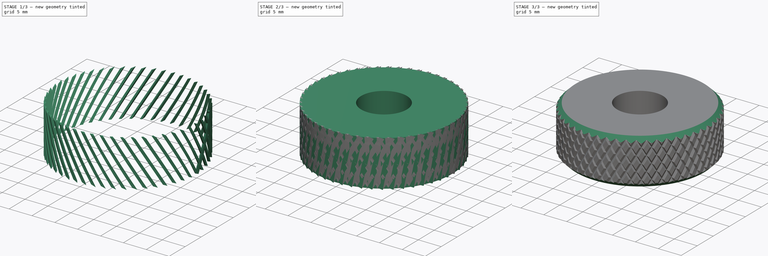
[diagram: build sequence overview — one tinted view per stage of 3, left to right]
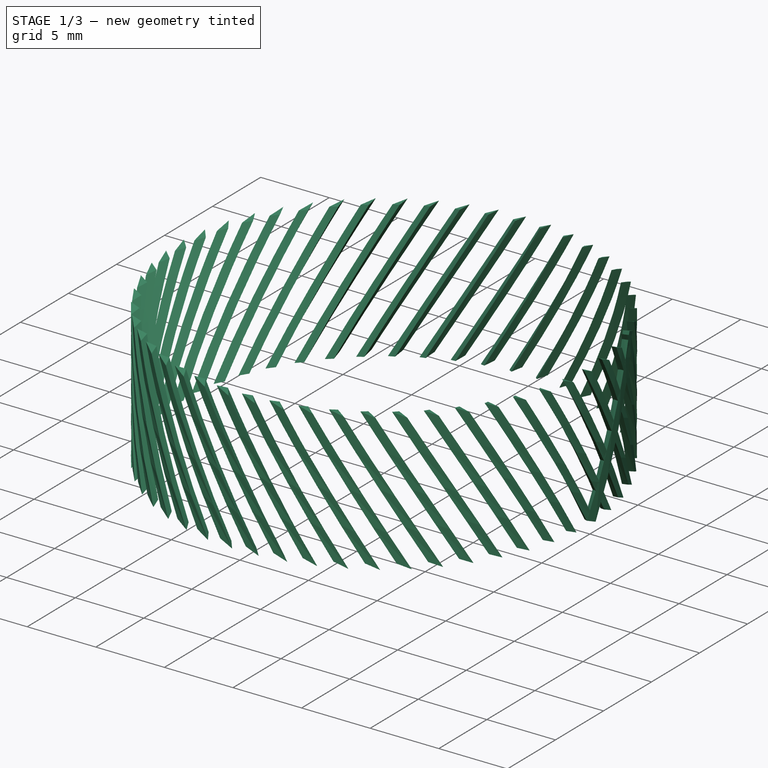
[diagram: stage 1 of 3 — iso view after this stage's code; geometry added in this stage tinted green]
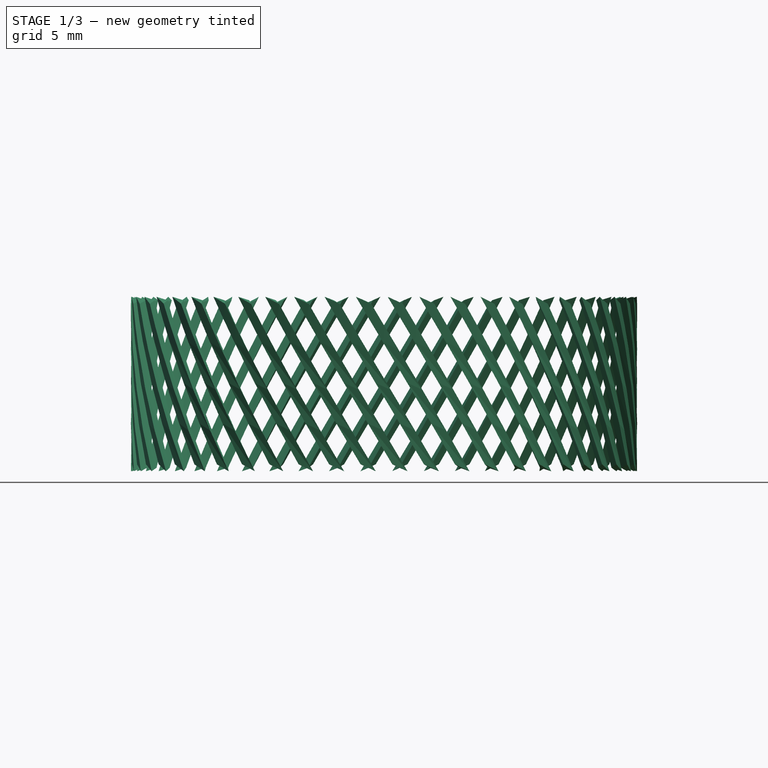
[diagram: stage 1 of 3 — front view after this stage's code; geometry added in this stage tinted green]
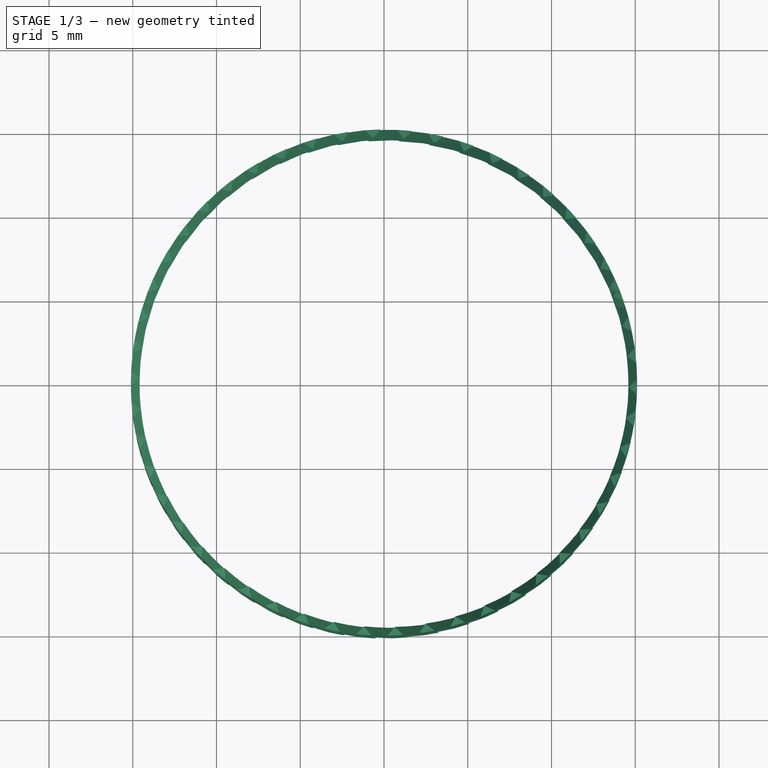
[diagram: stage 1 of 3 — top view after this stage's code; geometry added in this stage tinted green]
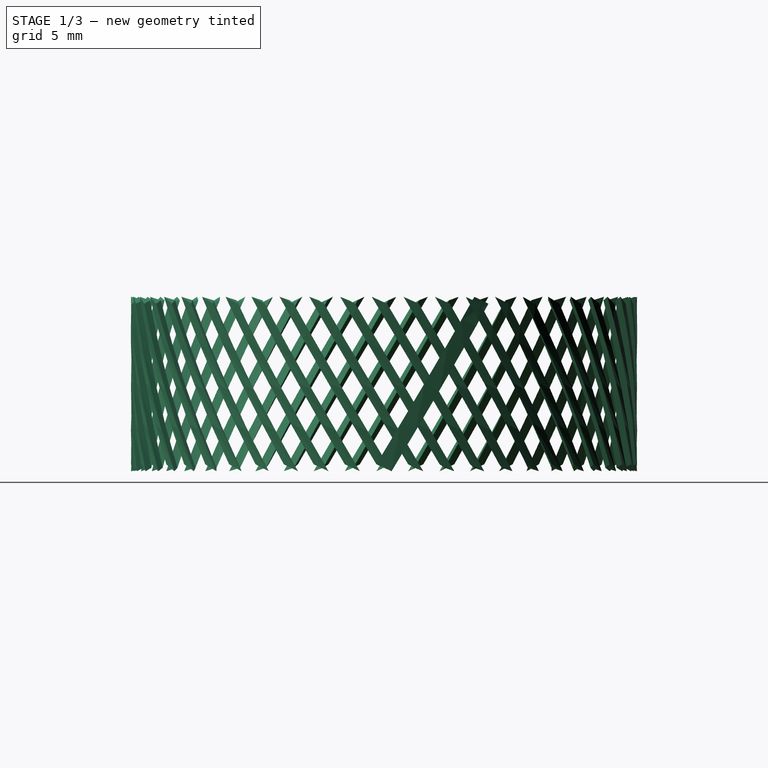
[diagram: stage 1 of 3 — right view after this stage's code; geometry added in this stage tinted green]
FCSTD DOCUMENT  (FreeCAD 0.16R6700 (Git))
Label: knurling
License: FreeArt
LicenseURL: http://artlibre.org/licence/lal
objects: Sketcher::SketchObject×2, Part::Helix×2, Part::Part2DObjectPython×2, Part::Sweep×2, Part::FeaturePython×2, Part::Cut×2, PartDesign::Pad×1, PartDesign::Chamfer×1
note: 15 computed .brp shape members not serialized (recipe doc carries the construction recipe); baked Part::Feature solids carry a one-line shape summary decoded from their .brp

FEATURE [Part::Helix] Helix
  Angle = 0
  Height = 10
  LocalCoord = 0
  Pitch = 159
  Radius = 15
  Style = 1
FEATURE [Part::Helix] Helix001
  Angle = 0
  Height = 10
  LocalCoord = 1
  Pitch = 159
  Radius = 15
  Style = 1
FEATURE [Sketcher::SketchObject] Sketch001
  Placement = pos=(0,0,0) rot=(1,0,0;3.14159rad)
  Support = -> Chamfer [Face4]
  sketch-geometry (4):
    g0: LineSegment StartX=14.604 StartY=0 StartZ=0 EndX=15.104 EndY=0.5 EndZ=0
    g1: LineSegment StartX=15.104 StartY=0.5 StartZ=0 EndX=15.104 EndY=-0.5 EndZ=0
    g2: LineSegment StartX=15.104 StartY=-0.5 StartZ=0 EndX=14.604 EndY=0 EndZ=0
    g3: GeomPoint [constr] X=15 Y=0 Z=0
  constraints (11):
    c: PointOnObject(g0,g-1)
    c: Coincident(g0,g1)
    c: Vertical(g1)
    c: Coincident(g1,g2)
    c: Coincident(g2,g0)
    c: Symmetric(g1,g0,g-1)
    c: Angle(g2,g0) = 1.5708
    c: PointOnObject(g3,g-1)
    c: DistanceX(g-2,g3) = 15
    c: Distance(g0,g3) = 0.396
    c: DistanceX(g2,g2) = 0.5
FEATURE [Part::Part2DObjectPython] DWire  # Draft 2D object (typed FeaturePython)
  ChamferSize = 0
  Closed = true
  End = (15.104,0.426498,0.260959)
  FilletRadius = 0
  Length = 2.41421
  MakeFace = true
  Placement = pos=(0,0,0) rot=(1,0,0;0.549097rad)
  Points = (3) [(14.604,0,0),(15.104,-0.5,0),(15.104,0.5,0)]
  Start = (14.604,0,0)
  Subdivisions = 0
FEATURE [Part::Part2DObjectPython] DWire001  # Draft 2D object (typed FeaturePython)
  ChamferSize = 0
  Closed = true
  End = (15.104,0.455147,-0.20698)
  FilletRadius = 0
  Length = 2.41421
  MakeFace = true
  Placement = pos=(0,0,0) rot=(-1,0,0;0.426801rad)
  Points = (3) [(14.604,0,0),(15.104,-0.5,0),(15.104,0.5,0)]
  Start = (14.604,0,0)
  Subdivisions = 0
FEATURE [Part::Sweep] Sweep
  Frenet = true
  Sections = -> [DWire001]
  Solid = true
  Spine = -> Helix
  Transition = 1
FEATURE [Part::Sweep] Sweep001
  Frenet = true
  Sections = -> [DWire001]
  Solid = true
  Spine = -> Helix001 [Edge1]
  Transition = 1
FEATURE [Part::FeaturePython] Array001  # Draft array (typed FeaturePython)
  Angle = 360
  ArrayType = 1
  Axis = (0,0,1)
  Base = -> Sweep001
  Center = (0,0,0)
  Fuse = false
  IntervalAxis = (0,0,0)
  IntervalX = (1,0,0)
  IntervalY = (0,1,0)
  IntervalZ = (0,0,0)
  NumberPolar = 50
  NumberX = 1
  NumberY = 2
  NumberZ = 1
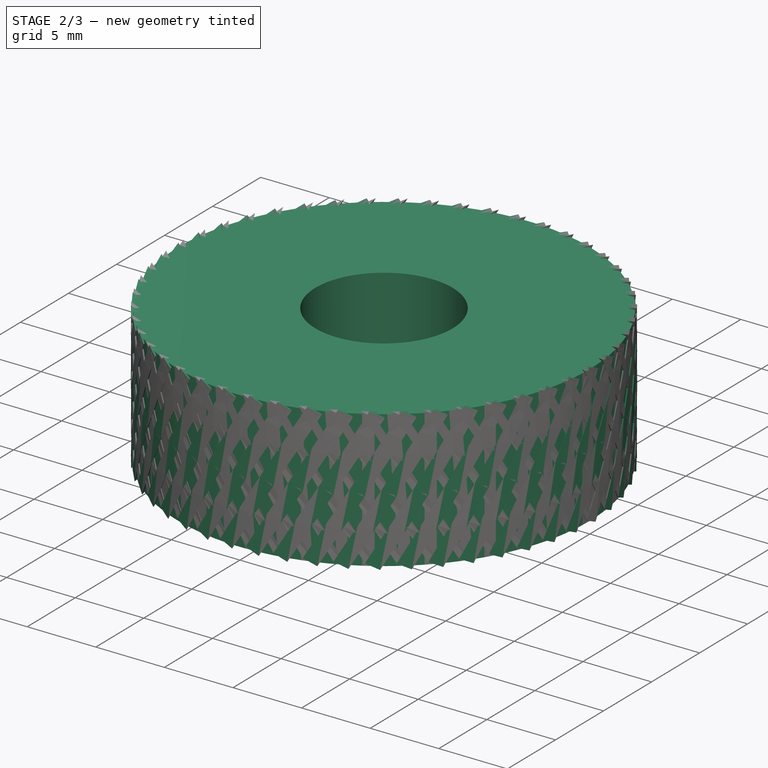
[diagram: stage 2 of 3 — iso view after this stage's code; geometry added in this stage tinted green]
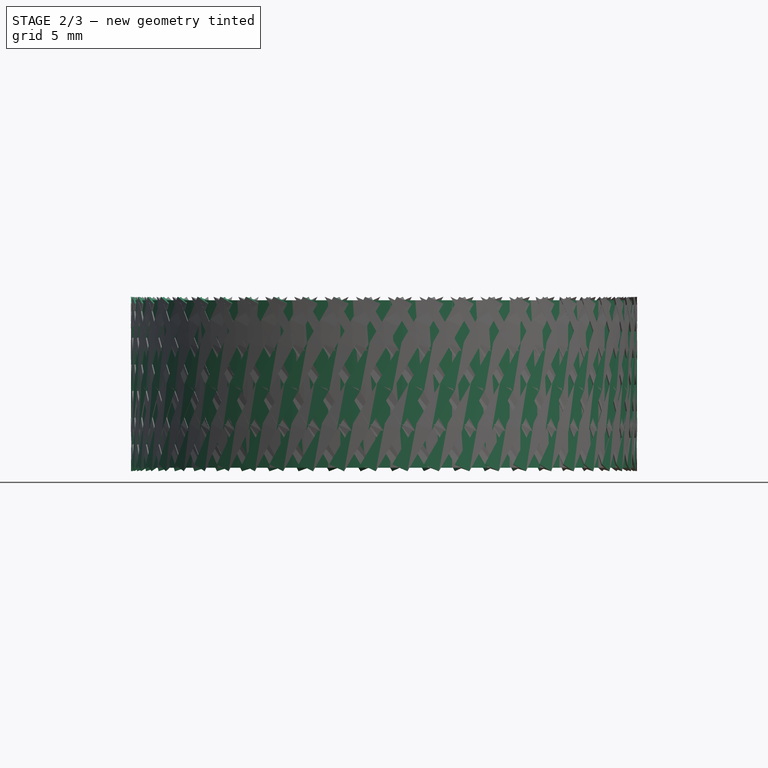
[diagram: stage 2 of 3 — front view after this stage's code; geometry added in this stage tinted green]
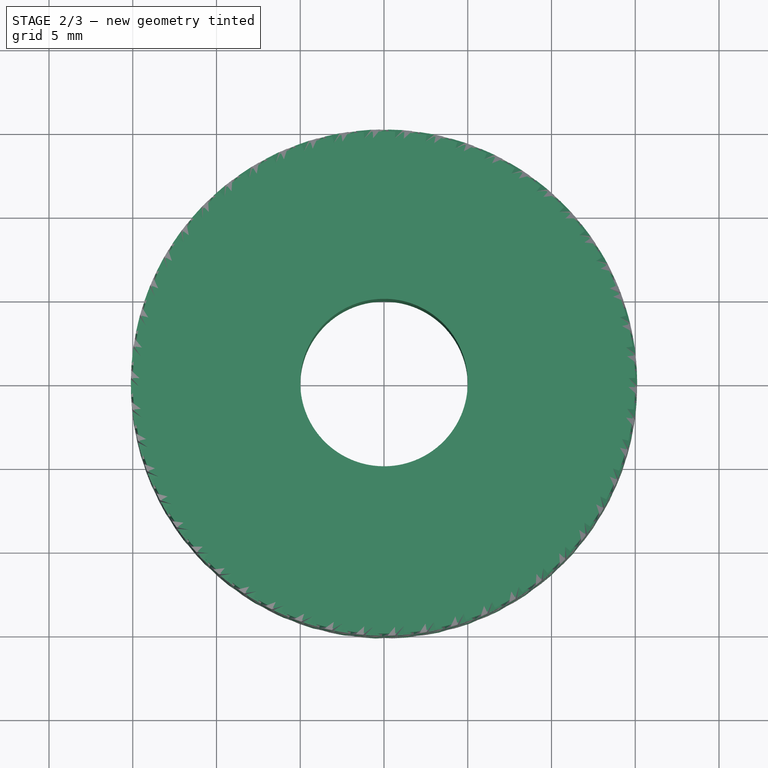
[diagram: stage 2 of 3 — top view after this stage's code; geometry added in this stage tinted green]
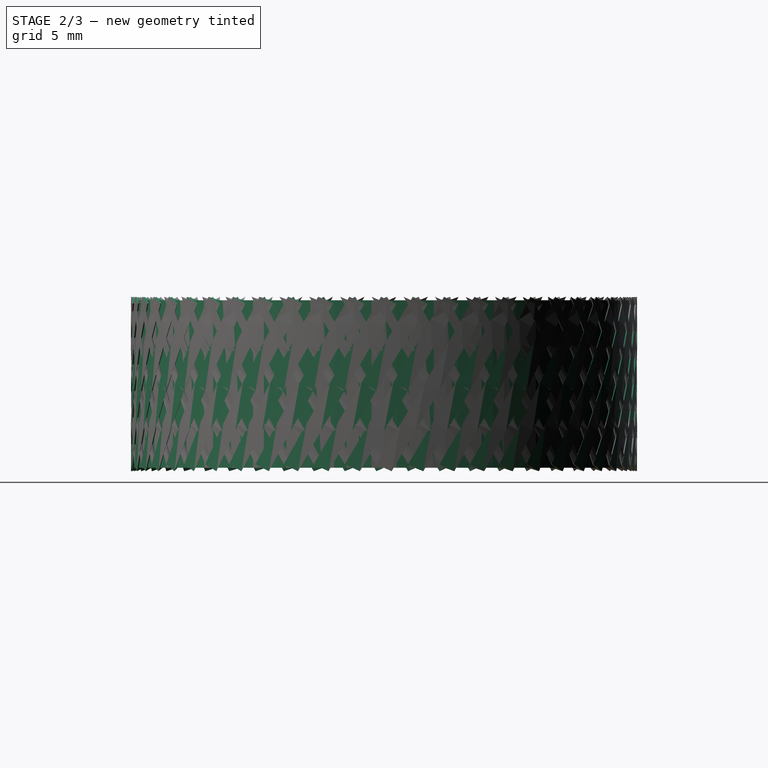
[diagram: stage 2 of 3 — right view after this stage's code; geometry added in this stage tinted green]
FEATURE [Sketcher::SketchObject] Sketch
  sketch-geometry (2):
    g0: Circle CenterX=0 CenterY=0 CenterZ=0 NormalX=0 NormalY=0 NormalZ=1 Radius=5
    g1: Circle CenterX=0 CenterY=0 CenterZ=0 NormalX=0 NormalY=0 NormalZ=1 Radius=15
  constraints (4):
    c: Coincident(g0,g-1)
    c: Coincident(g1,g-1)
    c: Radius(g0) = 5
    c: Radius(g1) = 15
FEATURE [PartDesign::Pad] Pad
  Length = 10
  Length2 = 100
  Sketch = -> Sketch
  Type = 0
FEATURE [Part::FeaturePython] Array  # Draft array (typed FeaturePython)
  Angle = 360
  ArrayType = 1
  Axis = (0,0,1)
  Base = -> Sweep
  Center = (0,0,0)
  Fuse = false
  IntervalAxis = (0,0,0)
  IntervalX = (1,0,0)
  IntervalY = (0,1,0)
  IntervalZ = (0,0,0)
  NumberPolar = 50
  NumberX = 1
  NumberY = 1
  NumberZ = 1
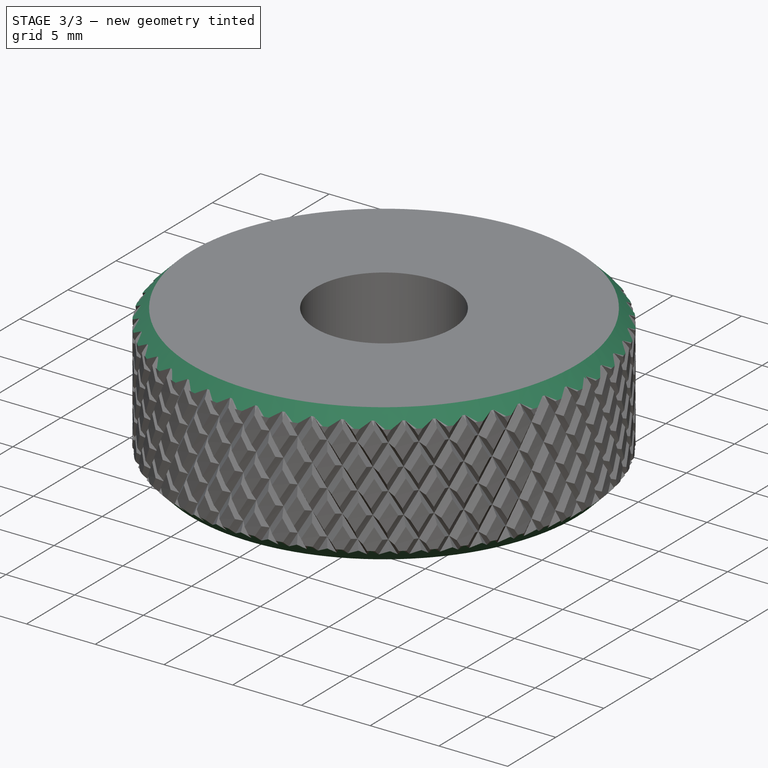
[diagram: stage 3 of 3 — iso view after this stage's code; geometry added in this stage tinted green]
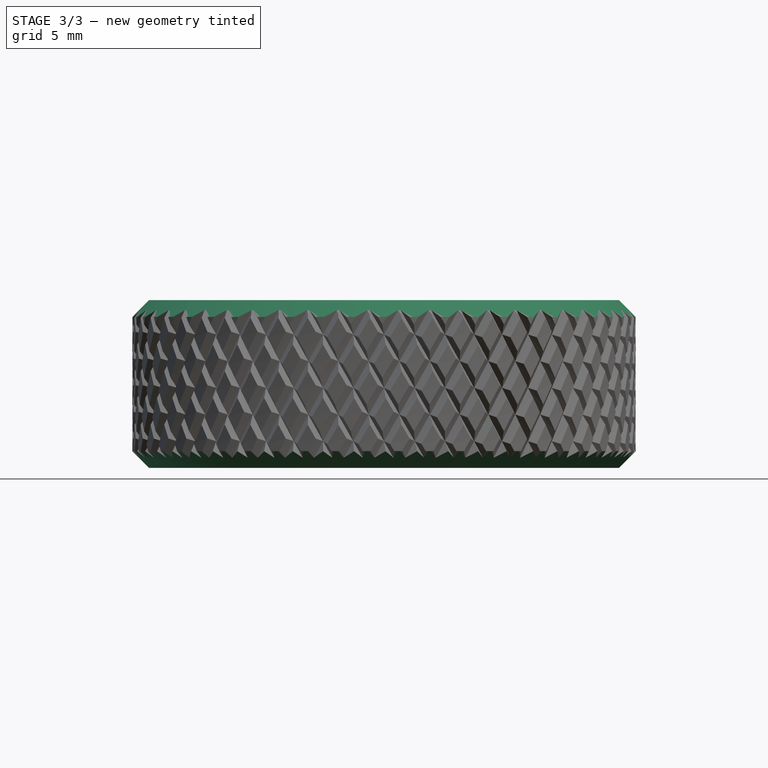
[diagram: stage 3 of 3 — front view after this stage's code; geometry added in this stage tinted green]
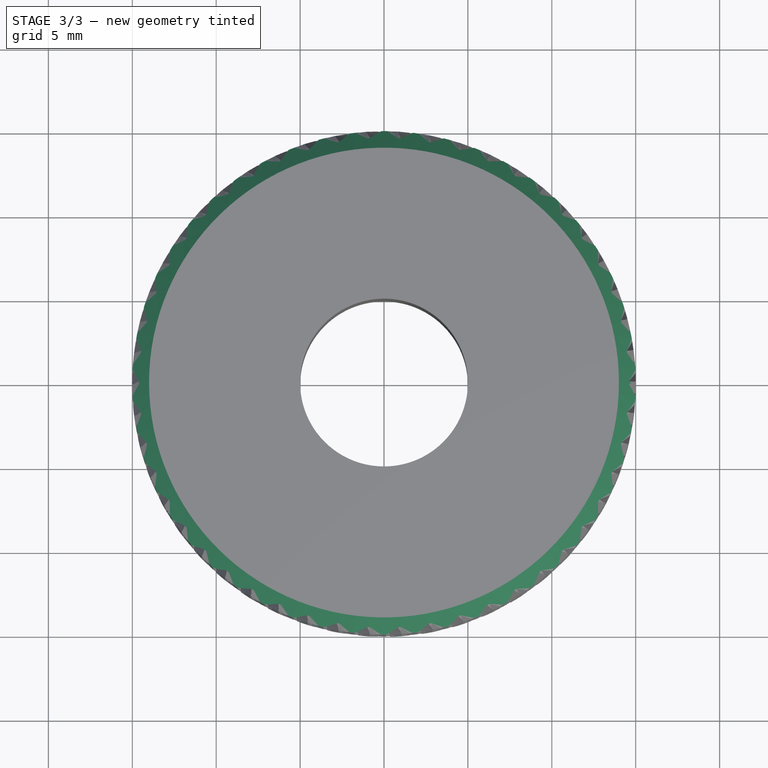
[diagram: stage 3 of 3 — top view after this stage's code; geometry added in this stage tinted green]
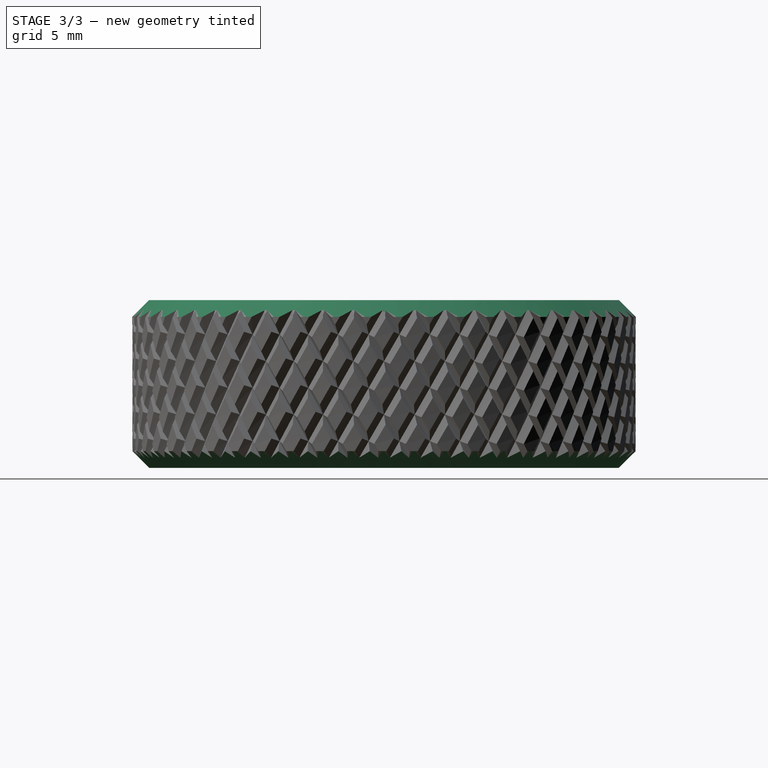
[diagram: stage 3 of 3 — right view after this stage's code; geometry added in this stage tinted green]
FEATURE [PartDesign::Chamfer] Chamfer
  Base = -> Pad [Edge3,Edge2]
  Size = 1
FEATURE [Part::Cut] Cut
  Base = -> Chamfer
  Tool = -> Array
FEATURE [Part::Cut] Cut001
  Base = -> Cut
  Tool = -> Array001
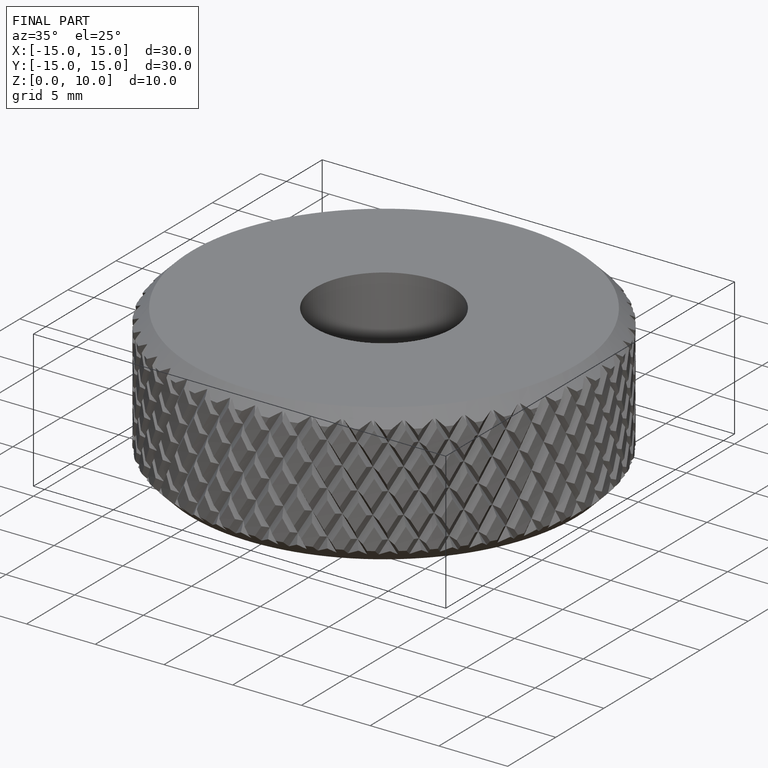
[diagram: finished part — iso view with bounding-box wireframe]
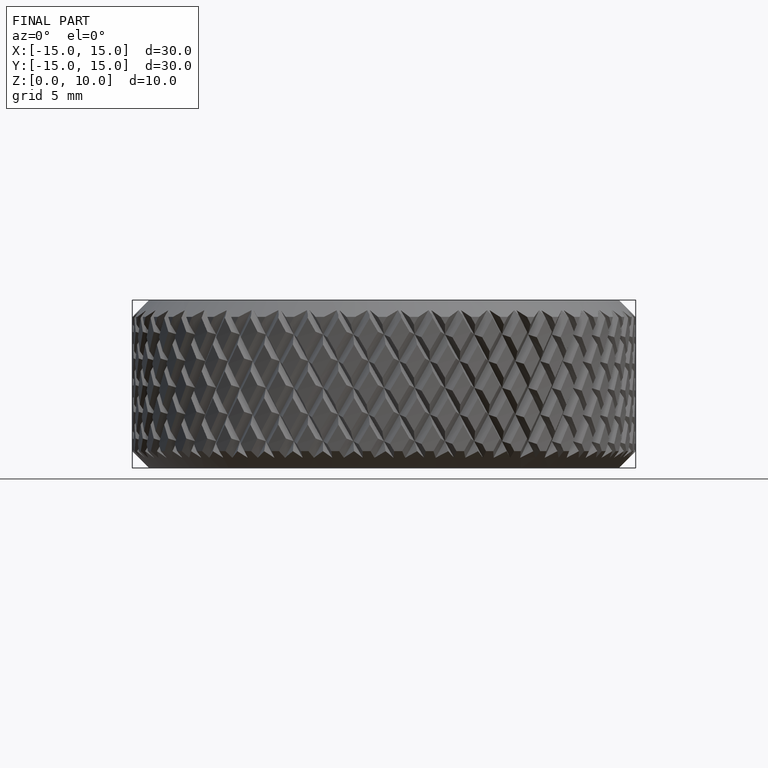
[diagram: finished part — front view with bounding-box wireframe]
